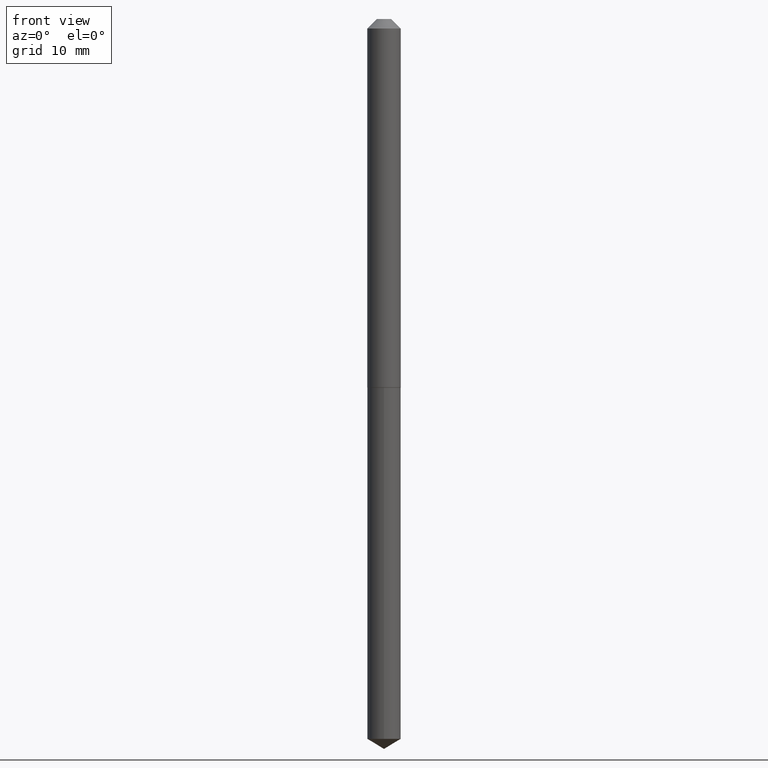
[diagram: clean part render]
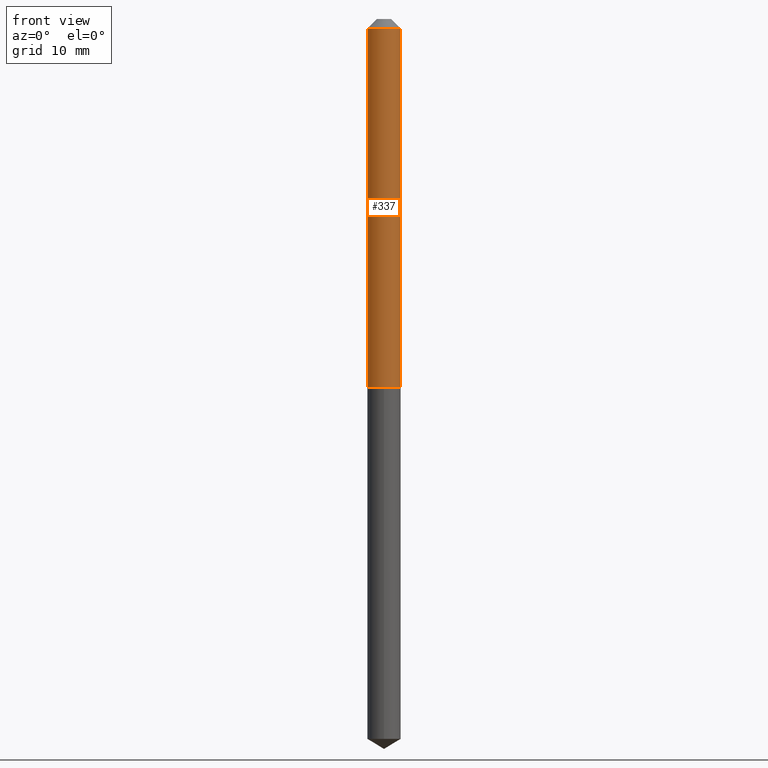
[diagram: same view with one face highlighted and labeled with its STEP entity id]
A machine part, front view. The second image highlights one B-rep face of the part: STEP entity #337.
In plain terms, the highlighted cylindrical surface (edge-blend (fillet) strip) has radius 1.3995 mm, axis along (-0, 0, 1).
Its self-contained STEP definition (entity closure, byte-faithful):
#4 = ORIENTED_EDGE ( 'NONE', *, *, #253, .F. ) ;
#20 = DIRECTION ( 'NONE',  ( 1.000000000000000000, -6.982962677686265133E-15, 0.000000000000000000 ) ) ;
#26 = VECTOR ( 'NONE', #264, 39.37007874015748143 ) ;
#33 = VERTEX_POINT ( 'NONE', #257 ) ;
#57 = EDGE_CURVE ( 'NONE', #360, #33, #72, .T. ) ;
#72 = CIRCLE ( 'NONE', #176, 0.05510000000000014886 ) ;
#90 = AXIS2_PLACEMENT_3D ( 'NONE', #256, #148, #105 ) ;
#93 = VERTEX_POINT ( 'NONE', #345 ) ;
#97 = FACE_OUTER_BOUND ( 'NONE', #303, .T. ) ;
#105 = DIRECTION ( 'NONE',  ( 1.000000000000000000, -6.982962677686265133E-15, 4.876176775795935793E-29 ) ) ;
#126 = CYLINDRICAL_SURFACE ( 'NONE', #90, 0.05510000000000008641 ) ;
#128 = EDGE_CURVE ( 'NONE', #33, #280, #312, .T. ) ;
#143 = LINE ( 'NONE', #242, #26 ) ;
#147 = CARTESIAN_POINT ( 'NONE',  ( 0.05510000000000000314, -4.938700353793622923E-16, -0.03125000000000020123 ) ) ;
#148 = DIRECTION ( 'NONE',  ( -2.445468806185136597E-29, 3.491481338843145583E-15, 1.000000000000000000 ) ) ;
#157 = AXIS2_PLACEMENT_3D ( 'NONE', #356, #388, #294 ) ;
#176 = AXIS2_PLACEMENT_3D ( 'NONE', #195, #315, #20 ) ;
#195 = CARTESIAN_POINT ( 'NONE',  ( 2.964152739977004555E-29, -4.232024530811777768E-15, -1.212100000000000399 ) ) ;
#206 = VECTOR ( 'NONE', #260, 39.37007874015748143 ) ;
#217 = ORIENTED_EDGE ( 'NONE', *, *, #128, .T. ) ;
#230 = CARTESIAN_POINT ( 'NONE',  ( 0.05510000000000008641, -3.847612435405138326E-16, 2.686773403463564871E-30 ) ) ;
#242 = CARTESIAN_POINT ( 'NONE',  ( -0.05510000000000008641, 3.915090474038158164E-16, -2.710333234730456984E-30 ) ) ;
#249 = CARTESIAN_POINT ( 'NONE',  ( -0.05510000000000014886, -3.840515483407961508E-15, -1.212100000000000399 ) ) ;
#253 = EDGE_CURVE ( 'NONE', #93, #280, #302, .T. ) ;
#256 = CARTESIAN_POINT ( 'NONE',  ( 0.000000000000000000, 0.000000000000000000, 0.000000000000000000 ) ) ;
#257 = CARTESIAN_POINT ( 'NONE',  ( 0.05510000000000014886, -4.616785774352292143E-15, -1.212100000000000399 ) ) ;
#260 = DIRECTION ( 'NONE',  ( -2.445468806185136877E-29, 3.491481338843145188E-15, 1.000000000000000000 ) ) ;
#264 = DIRECTION ( 'NONE',  ( -2.445468806185136877E-29, 3.491481338843145188E-15, 1.000000000000000000 ) ) ;
#280 = VERTEX_POINT ( 'NONE', #147 ) ;
#294 = DIRECTION ( 'NONE',  ( 1.000000000000000000, -6.982962677686265922E-15, 0.000000000000000000 ) ) ;
#301 = EDGE_CURVE ( 'NONE', #360, #93, #143, .T. ) ;
#302 = CIRCLE ( 'NONE', #157, 0.05510000000000000314 ) ;
#303 = EDGE_LOOP ( 'NONE', ( #307, #338, #217, #4 ) ) ;
#307 = ORIENTED_EDGE ( 'NONE', *, *, #301, .F. ) ;
#312 = LINE ( 'NONE', #230, #206 ) ;
#315 = DIRECTION ( 'NONE',  ( -2.445468806185136597E-29, 3.491481338843145583E-15, 1.000000000000000000 ) ) ;
#337 = ADVANCED_FACE ( 'NONE', ( #97 ), #126, .T. ) ;
#338 = ORIENTED_EDGE ( 'NONE', *, *, #57, .T. ) ;
#345 = CARTESIAN_POINT ( 'NONE',  ( -0.05510000000000000314, -1.779057613921496385E-15, -0.03125000000000020123 ) ) ;
#356 = CARTESIAN_POINT ( 'NONE',  ( 7.642090019328600035E-31, -1.091087918388489897E-16, -0.03125000000000020123 ) ) ;
#360 = VERTEX_POINT ( 'NONE', #249 ) ;
#388 = DIRECTION ( 'NONE',  ( -2.445468806185136597E-29, 3.491481338843145583E-15, 1.000000000000000000 ) ) ;